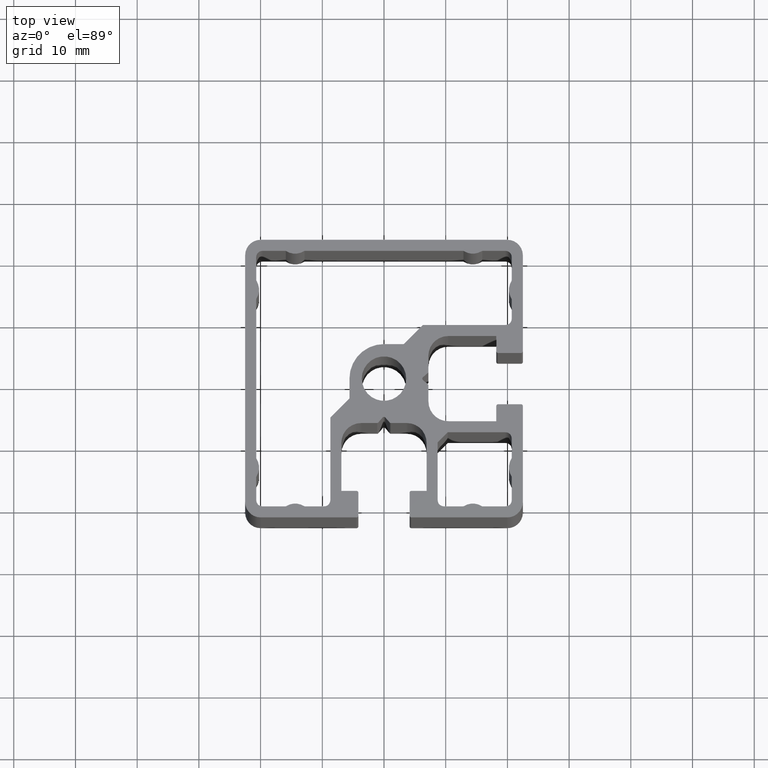
[diagram: clean part render]
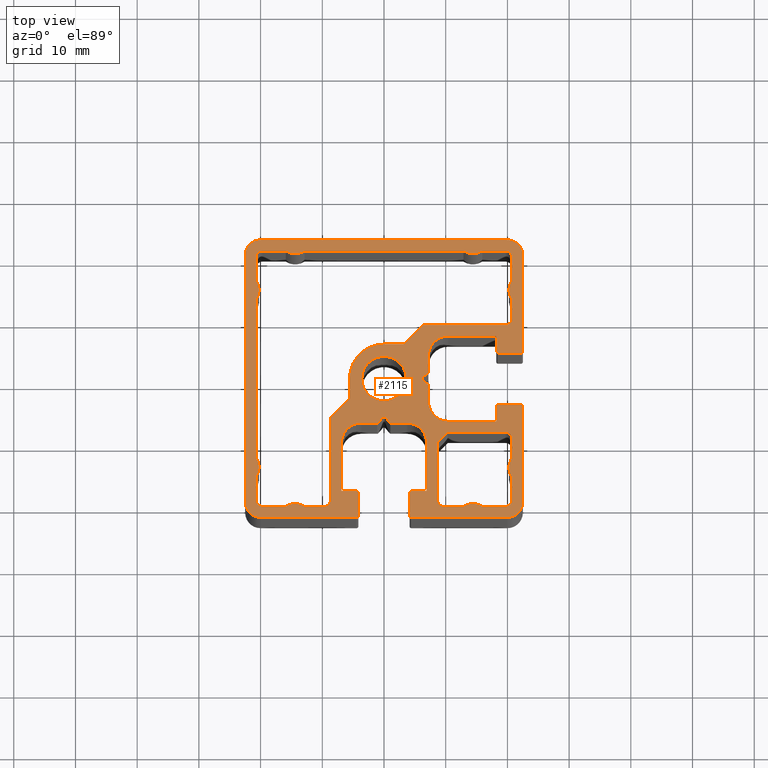
[diagram: same view with one face highlighted and labeled with its STEP entity id]
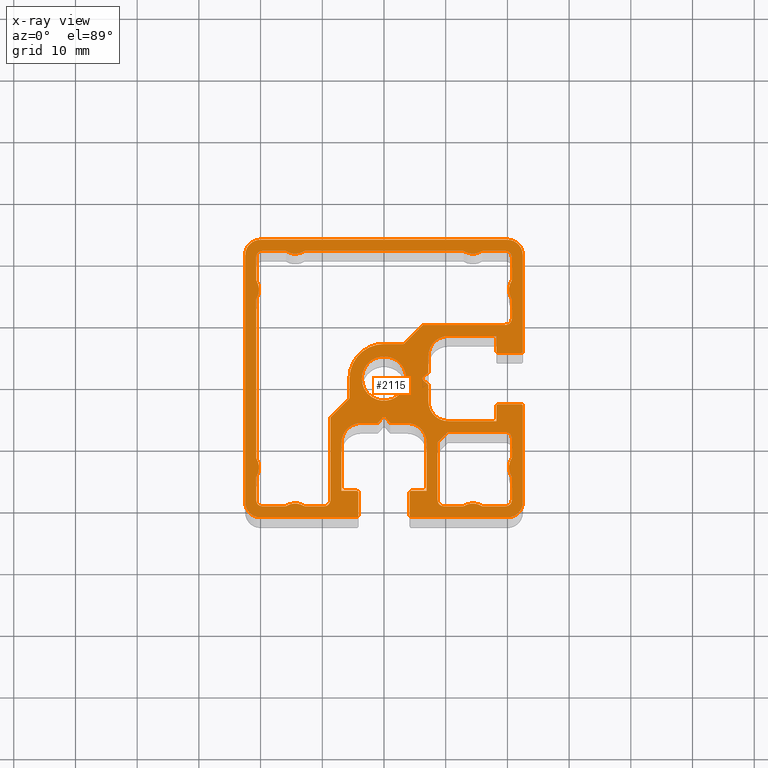
[diagram: x-ray of the same camera — body ghosted, the highlighted face saturated]
A machine part, top view. The second image highlights one B-rep face of the part: STEP entity #2115.
The next image is the same camera in x-ray: the body ghosted, the highlighted face saturated — about 0% of this face is hidden behind the body in this view.
In plain terms, the highlighted planar face has unit normal (0, 0, 1).
Its self-contained STEP definition (entity closure, byte-faithful):
#16=FACE_BOUND('',#396,.T.);
#17=FACE_BOUND('',#397,.T.);
#18=FACE_BOUND('',#398,.T.);
#22=CIRCLE('',#2129,0.999999999998);
#24=CIRCLE('',#2133,0.25);
#26=CIRCLE('',#2136,2.71999999998912);
#28=CIRCLE('',#2139,0.250000000000014);
#30=CIRCLE('',#2143,0.999999999996);
#32=CIRCLE('',#2147,0.250000000000007);
#34=CIRCLE('',#2150,2.7199999999891);
#36=CIRCLE('',#2153,0.249999999999989);
#38=CIRCLE('',#2157,0.999999999997998);
#40=CIRCLE('',#2162,0.250000000000018);
#42=CIRCLE('',#2166,0.999999999998003);
#44=CIRCLE('',#2172,5.6);
#46=CIRCLE('',#2178,0.999999999998003);
#48=CIRCLE('',#2182,0.249999999999979);
#50=CIRCLE('',#2185,2.71999999998913);
#52=CIRCLE('',#2188,0.249999999999993);
#54=CIRCLE('',#2192,0.999999999996);
#56=CIRCLE('',#2196,0.249999999999986);
#58=CIRCLE('',#2199,2.71999999998911);
#60=CIRCLE('',#2202,0.250000000000014);
#62=CIRCLE('',#2206,0.249999999999989);
#64=CIRCLE('',#2209,2.71999999998912);
#66=CIRCLE('',#2212,0.24999999999999);
#68=CIRCLE('',#2216,0.999999999996);
#70=CIRCLE('',#2220,0.250000000000004);
#72=CIRCLE('',#2223,2.71999999998913);
#74=CIRCLE('',#2226,0.249999999999986);
#76=CIRCLE('',#2230,0.250000000000004);
#78=CIRCLE('',#2233,2.71999999998912);
#80=CIRCLE('',#2236,0.25);
#82=CIRCLE('',#2240,0.999999999996);
#84=CIRCLE('',#2244,0.250000000000018);
#86=CIRCLE('',#2247,2.71999999998912);
#88=CIRCLE('',#2250,3.6);
#90=CIRCLE('',#2254,0.299999999999997);
#92=CIRCLE('',#2258,3.1999999999936);
#94=CIRCLE('',#2263,0.2999999999994);
#96=CIRCLE('',#2267,0.299999999999407);
#98=CIRCLE('',#2270,0.2999999999994);
#100=CIRCLE('',#2274,0.2999999999994);
#102=CIRCLE('',#2279,3.19999999999359);
#104=CIRCLE('',#2283,0.300000000000004);
#106=CIRCLE('',#2287,0.300000000000003);
#108=CIRCLE('',#2290,0.300000000000003);
#110=CIRCLE('',#2294,0.300000000000004);
#112=CIRCLE('',#2298,3.19999999999359);
#114=CIRCLE('',#2303,0.2999999999994);
#116=CIRCLE('',#2307,0.2999999999994);
#118=CIRCLE('',#2310,0.299999999999407);
#120=CIRCLE('',#2314,0.2999999999994);
#122=CIRCLE('',#2319,3.1999999999936);
#124=CIRCLE('',#2323,0.299999999999997);
#126=CIRCLE('',#2329,2.5);
#127=CIRCLE('',#2330,2.5);
#128=CIRCLE('',#2331,2.5);
#129=CIRCLE('',#2332,2.5);
#287=FACE_OUTER_BOUND('',#395,.T.);
#395=EDGE_LOOP('',(#1725,#1726,#1727,#1728,#1729,#1730,#1731,#1732,#1733,
#1734,#1735,#1736,#1737,#1738,#1739,#1740,#1741,#1742,#1743,#1744,#1745,
#1746,#1747,#1748,#1749,#1750,#1751,#1752,#1753,#1754,#1755,#1756,#1757,
#1758,#1759,#1760,#1761,#1762,#1763,#1764,#1765,#1766,#1767,#1768,#1769,
#1770,#1771,#1772));
#396=EDGE_LOOP('',(#1773));
#397=EDGE_LOOP('',(#1774,#1775,#1776,#1777,#1778,#1779,#1780,#1781,#1782,
#1783,#1784,#1785,#1786,#1787,#1788,#1789,#1790,#1791,#1792,#1793,#1794,
#1795,#1796,#1797,#1798,#1799,#1800,#1801,#1802,#1803,#1804,#1805,#1806,
#1807,#1808,#1809,#1810,#1811,#1812,#1813));
#398=EDGE_LOOP('',(#1814,#1815,#1816,#1817,#1818,#1819,#1820,#1821,#1822,
#1823,#1824,#1825,#1826,#1827,#1828,#1829));
#411=LINE('',#2992,#613);
#416=LINE('',#3006,#618);
#422=LINE('',#3030,#624);
#426=LINE('',#3042,#628);
#432=LINE('',#3066,#634);
#436=LINE('',#3078,#638);
#439=LINE('',#3083,#641);
#443=LINE('',#3096,#645);
#447=LINE('',#3108,#649);
#450=LINE('',#3114,#652);
#453=LINE('',#3120,#655);
#457=LINE('',#3132,#659);
#460=LINE('',#3138,#662);
#463=LINE('',#3144,#665);
#467=LINE('',#3156,#669);
#473=LINE('',#3180,#675);
#477=LINE('',#3192,#679);
#483=LINE('',#3216,#685);
#489=LINE('',#3240,#691);
#493=LINE('',#3252,#695);
#499=LINE('',#3276,#701);
#505=LINE('',#3300,#707);
#509=LINE('',#3312,#711);
#513=LINE('',#3333,#715);
#518=LINE('',#3347,#720);
#522=LINE('',#3359,#724);
#525=LINE('',#3365,#727);
#529=LINE('',#3377,#731);
#535=LINE('',#3398,#737);
#539=LINE('',#3410,#741);
#542=LINE('',#3416,#744);
#546=LINE('',#3428,#748);
#550=LINE('',#3440,#752);
#555=LINE('',#3458,#757);
#559=LINE('',#3470,#761);
#563=LINE('',#3482,#765);
#566=LINE('',#3488,#768);
#570=LINE('',#3500,#772);
#576=LINE('',#3521,#778);
#580=LINE('',#3533,#782);
#583=LINE('',#3539,#785);
#587=LINE('',#3551,#789);
#591=LINE('',#3562,#793);
#595=LINE('',#3569,#797);
#596=LINE('',#3572,#798);
#599=LINE('',#3579,#801);
#600=LINE('',#3583,#802);
#601=LINE('',#3587,#803);
#602=LINE('',#3590,#804);
#613=VECTOR('',#2350,9.37365400000362);
#618=VECTOR('',#2363,3.12821757232699);
#624=VECTOR('',#2389,3.7282175723307);
#628=VECTOR('',#2401,3.7282175723338);
#634=VECTOR('',#2427,3.12821757233066);
#638=VECTOR('',#2439,9.37365400000133);
#641=VECTOR('',#2444,2.30000057030746);
#645=VECTOR('',#2456,3.1282175723185);
#649=VECTOR('',#2468,13.3999999999912);
#652=VECTOR('',#2473,4.38406204337121);
#655=VECTOR('',#2478,3.2);
#659=VECTOR('',#2490,3.2);
#662=VECTOR('',#2495,4.38406204337119);
#665=VECTOR('',#2500,13.3999999999897);
#669=VECTOR('',#2512,3.12821757233066);
#675=VECTOR('',#2538,3.72821757233365);
#679=VECTOR('',#2550,3.72821757233071);
#685=VECTOR('',#2576,25.6564351446578);
#691=VECTOR('',#2602,3.72821757233071);
#695=VECTOR('',#2614,3.72821757233365);
#701=VECTOR('',#2640,25.6564351446596);
#707=VECTOR('',#2666,3.72821757232995);
#711=VECTOR('',#2678,3.72821757233143);
#715=VECTOR('',#2702,1.0422851300662);
#720=VECTOR('',#2715,2.56331167858849);
#724=VECTOR('',#2727,7.8);
#727=VECTOR('',#2732,2.45);
#731=VECTOR('',#2744,3.7);
#737=VECTOR('',#2764,3.7);
#741=VECTOR('',#2776,2.45);
#744=VECTOR('',#2781,7.80000000000002);
#748=VECTOR('',#2793,2.5633116785888);
#752=VECTOR('',#2805,1.04228513006779);
#757=VECTOR('',#2824,1.04228513006779);
#761=VECTOR('',#2836,2.5633116785888);
#765=VECTOR('',#2848,7.80000000000001);
#768=VECTOR('',#2853,2.45);
#772=VECTOR('',#2865,3.7);
#778=VECTOR('',#2885,3.7);
#782=VECTOR('',#2897,2.45);
#785=VECTOR('',#2902,7.8);
#789=VECTOR('',#2914,2.56331167858849);
#793=VECTOR('',#2926,1.0422851300662);
#797=VECTOR('',#2932,15.5500000000006);
#798=VECTOR('',#2935,15.55);
#801=VECTOR('',#2942,15.5500000000006);
#802=VECTOR('',#2945,40.);
#803=VECTOR('',#2948,40.);
#804=VECTOR('',#2951,15.55);
#815=VERTEX_POINT('',#2990);
#816=VERTEX_POINT('',#2991);
#819=VERTEX_POINT('',#2999);
#821=VERTEX_POINT('',#3005);
#823=VERTEX_POINT('',#3011);
#825=VERTEX_POINT('',#3017);
#827=VERTEX_POINT('',#3023);
#829=VERTEX_POINT('',#3029);
#831=VERTEX_POINT('',#3035);
#833=VERTEX_POINT('',#3041);
#835=VERTEX_POINT('',#3047);
#837=VERTEX_POINT('',#3053);
#839=VERTEX_POINT('',#3059);
#841=VERTEX_POINT('',#3065);
#843=VERTEX_POINT('',#3071);
#845=VERTEX_POINT('',#3077);
#847=VERTEX_POINT('',#3086);
#848=VERTEX_POINT('',#3087);
#851=VERTEX_POINT('',#3095);
#853=VERTEX_POINT('',#3101);
#855=VERTEX_POINT('',#3107);
#857=VERTEX_POINT('',#3113);
#859=VERTEX_POINT('',#3119);
#861=VERTEX_POINT('',#3125);
#863=VERTEX_POINT('',#3131);
#865=VERTEX_POINT('',#3137);
#867=VERTEX_POINT('',#3143);
#869=VERTEX_POINT('',#3149);
#871=VERTEX_POINT('',#3155);
#873=VERTEX_POINT('',#3161);
#875=VERTEX_POINT('',#3167);
#877=VERTEX_POINT('',#3173);
#879=VERTEX_POINT('',#3179);
#881=VERTEX_POINT('',#3185);
#883=VERTEX_POINT('',#3191);
#885=VERTEX_POINT('',#3197);
#887=VERTEX_POINT('',#3203);
#889=VERTEX_POINT('',#3209);
#891=VERTEX_POINT('',#3215);
#893=VERTEX_POINT('',#3221);
#895=VERTEX_POINT('',#3227);
#897=VERTEX_POINT('',#3233);
#899=VERTEX_POINT('',#3239);
#901=VERTEX_POINT('',#3245);
#903=VERTEX_POINT('',#3251);
#905=VERTEX_POINT('',#3257);
#907=VERTEX_POINT('',#3263);
#909=VERTEX_POINT('',#3269);
#911=VERTEX_POINT('',#3275);
#913=VERTEX_POINT('',#3281);
#915=VERTEX_POINT('',#3287);
#917=VERTEX_POINT('',#3293);
#919=VERTEX_POINT('',#3299);
#921=VERTEX_POINT('',#3305);
#923=VERTEX_POINT('',#3311);
#925=VERTEX_POINT('',#3317);
#927=VERTEX_POINT('',#3326);
#929=VERTEX_POINT('',#3331);
#930=VERTEX_POINT('',#3332);
#933=VERTEX_POINT('',#3340);
#935=VERTEX_POINT('',#3346);
#937=VERTEX_POINT('',#3352);
#939=VERTEX_POINT('',#3358);
#941=VERTEX_POINT('',#3364);
#943=VERTEX_POINT('',#3370);
#945=VERTEX_POINT('',#3376);
#947=VERTEX_POINT('',#3382);
#949=VERTEX_POINT('',#3388);
#950=VERTEX_POINT('',#3389);
#953=VERTEX_POINT('',#3397);
#955=VERTEX_POINT('',#3403);
#957=VERTEX_POINT('',#3409);
#959=VERTEX_POINT('',#3415);
#961=VERTEX_POINT('',#3421);
#963=VERTEX_POINT('',#3427);
#965=VERTEX_POINT('',#3433);
#967=VERTEX_POINT('',#3439);
#969=VERTEX_POINT('',#3448);
#970=VERTEX_POINT('',#3449);
#973=VERTEX_POINT('',#3457);
#975=VERTEX_POINT('',#3463);
#977=VERTEX_POINT('',#3469);
#979=VERTEX_POINT('',#3475);
#981=VERTEX_POINT('',#3481);
#983=VERTEX_POINT('',#3487);
#985=VERTEX_POINT('',#3493);
#987=VERTEX_POINT('',#3499);
#989=VERTEX_POINT('',#3505);
#991=VERTEX_POINT('',#3511);
#992=VERTEX_POINT('',#3512);
#995=VERTEX_POINT('',#3520);
#997=VERTEX_POINT('',#3526);
#999=VERTEX_POINT('',#3532);
#1001=VERTEX_POINT('',#3538);
#1003=VERTEX_POINT('',#3544);
#1005=VERTEX_POINT('',#3550);
#1007=VERTEX_POINT('',#3556);
#1010=VERTEX_POINT('',#3567);
#1011=VERTEX_POINT('',#3571);
#1013=VERTEX_POINT('',#3578);
#1014=VERTEX_POINT('',#3580);
#1015=VERTEX_POINT('',#3582);
#1016=VERTEX_POINT('',#3584);
#1017=VERTEX_POINT('',#3586);
#1018=VERTEX_POINT('',#3588);
#1025=EDGE_CURVE('',#815,#816,#411,.T.);
#1029=EDGE_CURVE('',#816,#819,#22,.T.);
#1032=EDGE_CURVE('',#819,#821,#416,.T.);
#1035=EDGE_CURVE('',#821,#823,#24,.T.);
#1038=EDGE_CURVE('',#823,#825,#26,.T.);
#1041=EDGE_CURVE('',#825,#827,#28,.T.);
#1044=EDGE_CURVE('',#827,#829,#422,.T.);
#1047=EDGE_CURVE('',#829,#831,#30,.T.);
#1050=EDGE_CURVE('',#831,#833,#426,.T.);
#1053=EDGE_CURVE('',#833,#835,#32,.T.);
#1056=EDGE_CURVE('',#835,#837,#34,.T.);
#1059=EDGE_CURVE('',#837,#839,#36,.T.);
#1062=EDGE_CURVE('',#839,#841,#432,.T.);
#1065=EDGE_CURVE('',#841,#843,#38,.T.);
#1068=EDGE_CURVE('',#843,#845,#436,.T.);
#1071=EDGE_CURVE('',#845,#815,#439,.T.);
#1073=EDGE_CURVE('',#847,#848,#40,.T.);
#1077=EDGE_CURVE('',#848,#851,#443,.T.);
#1080=EDGE_CURVE('',#851,#853,#42,.T.);
#1083=EDGE_CURVE('',#853,#855,#447,.T.);
#1086=EDGE_CURVE('',#855,#857,#450,.T.);
#1089=EDGE_CURVE('',#857,#859,#453,.T.);
#1092=EDGE_CURVE('',#859,#861,#44,.T.);
#1095=EDGE_CURVE('',#861,#863,#457,.T.);
#1098=EDGE_CURVE('',#863,#865,#460,.T.);
#1101=EDGE_CURVE('',#865,#867,#463,.T.);
#1104=EDGE_CURVE('',#867,#869,#46,.T.);
#1107=EDGE_CURVE('',#869,#871,#467,.T.);
#1110=EDGE_CURVE('',#871,#873,#48,.T.);
#1113=EDGE_CURVE('',#873,#875,#50,.T.);
#1116=EDGE_CURVE('',#875,#877,#52,.T.);
#1119=EDGE_CURVE('',#877,#879,#473,.T.);
#1122=EDGE_CURVE('',#879,#881,#54,.T.);
#1125=EDGE_CURVE('',#881,#883,#477,.T.);
#1128=EDGE_CURVE('',#883,#885,#56,.T.);
#1131=EDGE_CURVE('',#885,#887,#58,.T.);
#1134=EDGE_CURVE('',#887,#889,#60,.T.);
#1137=EDGE_CURVE('',#889,#891,#483,.T.);
#1140=EDGE_CURVE('',#891,#893,#62,.T.);
#1143=EDGE_CURVE('',#893,#895,#64,.T.);
#1146=EDGE_CURVE('',#895,#897,#66,.T.);
#1149=EDGE_CURVE('',#897,#899,#489,.T.);
#1152=EDGE_CURVE('',#899,#901,#68,.T.);
#1155=EDGE_CURVE('',#901,#903,#493,.T.);
#1158=EDGE_CURVE('',#903,#905,#70,.T.);
#1161=EDGE_CURVE('',#905,#907,#72,.T.);
#1164=EDGE_CURVE('',#907,#909,#74,.T.);
#1167=EDGE_CURVE('',#909,#911,#499,.T.);
#1170=EDGE_CURVE('',#911,#913,#76,.T.);
#1173=EDGE_CURVE('',#913,#915,#78,.T.);
#1176=EDGE_CURVE('',#915,#917,#80,.T.);
#1179=EDGE_CURVE('',#917,#919,#505,.T.);
#1182=EDGE_CURVE('',#919,#921,#82,.T.);
#1185=EDGE_CURVE('',#921,#923,#509,.T.);
#1188=EDGE_CURVE('',#923,#925,#84,.T.);
#1191=EDGE_CURVE('',#925,#847,#86,.T.);
#1193=EDGE_CURVE('',#927,#927,#88,.T.);
#1195=EDGE_CURVE('',#929,#930,#513,.T.);
#1199=EDGE_CURVE('',#930,#933,#90,.T.);
#1202=EDGE_CURVE('',#933,#935,#518,.T.);
#1205=EDGE_CURVE('',#935,#937,#92,.T.);
#1208=EDGE_CURVE('',#937,#939,#522,.T.);
#1211=EDGE_CURVE('',#939,#941,#525,.T.);
#1214=EDGE_CURVE('',#941,#943,#94,.T.);
#1217=EDGE_CURVE('',#943,#945,#529,.T.);
#1220=EDGE_CURVE('',#945,#947,#96,.T.);
#1223=EDGE_CURVE('',#949,#950,#98,.T.);
#1227=EDGE_CURVE('',#950,#953,#535,.T.);
#1230=EDGE_CURVE('',#953,#955,#100,.T.);
#1233=EDGE_CURVE('',#955,#957,#539,.T.);
#1236=EDGE_CURVE('',#957,#959,#542,.T.);
#1239=EDGE_CURVE('',#959,#961,#102,.T.);
#1242=EDGE_CURVE('',#961,#963,#546,.T.);
#1245=EDGE_CURVE('',#963,#965,#104,.T.);
#1248=EDGE_CURVE('',#965,#967,#550,.T.);
#1251=EDGE_CURVE('',#967,#929,#106,.T.);
#1253=EDGE_CURVE('',#969,#970,#108,.T.);
#1257=EDGE_CURVE('',#973,#969,#555,.T.);
#1260=EDGE_CURVE('',#975,#973,#110,.T.);
#1263=EDGE_CURVE('',#977,#975,#559,.T.);
#1266=EDGE_CURVE('',#979,#977,#112,.T.);
#1269=EDGE_CURVE('',#981,#979,#563,.T.);
#1272=EDGE_CURVE('',#983,#981,#566,.T.);
#1275=EDGE_CURVE('',#985,#983,#114,.T.);
#1278=EDGE_CURVE('',#987,#985,#570,.T.);
#1281=EDGE_CURVE('',#989,#987,#116,.T.);
#1284=EDGE_CURVE('',#991,#992,#118,.T.);
#1288=EDGE_CURVE('',#995,#991,#576,.T.);
#1291=EDGE_CURVE('',#997,#995,#120,.T.);
#1294=EDGE_CURVE('',#999,#997,#580,.T.);
#1297=EDGE_CURVE('',#1001,#999,#583,.T.);
#1300=EDGE_CURVE('',#1003,#1001,#122,.T.);
#1303=EDGE_CURVE('',#1005,#1003,#587,.T.);
#1306=EDGE_CURVE('',#1007,#1005,#124,.T.);
#1309=EDGE_CURVE('',#970,#1007,#591,.T.);
#1313=EDGE_CURVE('',#1010,#947,#595,.T.);
#1314=EDGE_CURVE('',#989,#1011,#596,.T.);
#1317=EDGE_CURVE('',#1011,#1010,#126,.T.);
#1318=EDGE_CURVE('',#1013,#992,#599,.T.);
#1319=EDGE_CURVE('',#1014,#1013,#127,.T.);
#1320=EDGE_CURVE('',#1015,#1014,#600,.T.);
#1321=EDGE_CURVE('',#1016,#1015,#128,.T.);
#1322=EDGE_CURVE('',#1017,#1016,#601,.T.);
#1323=EDGE_CURVE('',#1018,#1017,#129,.T.);
#1324=EDGE_CURVE('',#949,#1018,#602,.T.);
#1725=ORIENTED_EDGE('',*,*,#1223,.T.);
#1726=ORIENTED_EDGE('',*,*,#1227,.T.);
#1727=ORIENTED_EDGE('',*,*,#1230,.T.);
#1728=ORIENTED_EDGE('',*,*,#1233,.T.);
#1729=ORIENTED_EDGE('',*,*,#1236,.T.);
#1730=ORIENTED_EDGE('',*,*,#1239,.T.);
#1731=ORIENTED_EDGE('',*,*,#1242,.T.);
#1732=ORIENTED_EDGE('',*,*,#1245,.T.);
#1733=ORIENTED_EDGE('',*,*,#1248,.T.);
#1734=ORIENTED_EDGE('',*,*,#1251,.T.);
#1735=ORIENTED_EDGE('',*,*,#1195,.T.);
#1736=ORIENTED_EDGE('',*,*,#1199,.T.);
#1737=ORIENTED_EDGE('',*,*,#1202,.T.);
#1738=ORIENTED_EDGE('',*,*,#1205,.T.);
#1739=ORIENTED_EDGE('',*,*,#1208,.T.);
#1740=ORIENTED_EDGE('',*,*,#1211,.T.);
#1741=ORIENTED_EDGE('',*,*,#1214,.T.);
#1742=ORIENTED_EDGE('',*,*,#1217,.T.);
#1743=ORIENTED_EDGE('',*,*,#1220,.T.);
#1744=ORIENTED_EDGE('',*,*,#1313,.F.);
#1745=ORIENTED_EDGE('',*,*,#1317,.F.);
#1746=ORIENTED_EDGE('',*,*,#1314,.F.);
#1747=ORIENTED_EDGE('',*,*,#1281,.T.);
#1748=ORIENTED_EDGE('',*,*,#1278,.T.);
#1749=ORIENTED_EDGE('',*,*,#1275,.T.);
#1750=ORIENTED_EDGE('',*,*,#1272,.T.);
#1751=ORIENTED_EDGE('',*,*,#1269,.T.);
#1752=ORIENTED_EDGE('',*,*,#1266,.T.);
#1753=ORIENTED_EDGE('',*,*,#1263,.T.);
#1754=ORIENTED_EDGE('',*,*,#1260,.T.);
#1755=ORIENTED_EDGE('',*,*,#1257,.T.);
#1756=ORIENTED_EDGE('',*,*,#1253,.T.);
#1757=ORIENTED_EDGE('',*,*,#1309,.T.);
#1758=ORIENTED_EDGE('',*,*,#1306,.T.);
#1759=ORIENTED_EDGE('',*,*,#1303,.T.);
#1760=ORIENTED_EDGE('',*,*,#1300,.T.);
#1761=ORIENTED_EDGE('',*,*,#1297,.T.);
#1762=ORIENTED_EDGE('',*,*,#1294,.T.);
#1763=ORIENTED_EDGE('',*,*,#1291,.T.);
#1764=ORIENTED_EDGE('',*,*,#1288,.T.);
#1765=ORIENTED_EDGE('',*,*,#1284,.T.);
#1766=ORIENTED_EDGE('',*,*,#1318,.F.);
#1767=ORIENTED_EDGE('',*,*,#1319,.F.);
#1768=ORIENTED_EDGE('',*,*,#1320,.F.);
#1769=ORIENTED_EDGE('',*,*,#1321,.F.);
#1770=ORIENTED_EDGE('',*,*,#1322,.F.);
#1771=ORIENTED_EDGE('',*,*,#1323,.F.);
#1772=ORIENTED_EDGE('',*,*,#1324,.F.);
#1773=ORIENTED_EDGE('',*,*,#1193,.T.);
#1774=ORIENTED_EDGE('',*,*,#1073,.T.);
#1775=ORIENTED_EDGE('',*,*,#1077,.T.);
#1776=ORIENTED_EDGE('',*,*,#1080,.T.);
#1777=ORIENTED_EDGE('',*,*,#1083,.T.);
#1778=ORIENTED_EDGE('',*,*,#1086,.T.);
#1779=ORIENTED_EDGE('',*,*,#1089,.T.);
#1780=ORIENTED_EDGE('',*,*,#1092,.T.);
#1781=ORIENTED_EDGE('',*,*,#1095,.T.);
#1782=ORIENTED_EDGE('',*,*,#1098,.T.);
#1783=ORIENTED_EDGE('',*,*,#1101,.T.);
#1784=ORIENTED_EDGE('',*,*,#1104,.T.);
#1785=ORIENTED_EDGE('',*,*,#1107,.T.);
#1786=ORIENTED_EDGE('',*,*,#1110,.T.);
#1787=ORIENTED_EDGE('',*,*,#1113,.T.);
#1788=ORIENTED_EDGE('',*,*,#1116,.T.);
#1789=ORIENTED_EDGE('',*,*,#1119,.T.);
#1790=ORIENTED_EDGE('',*,*,#1122,.T.);
#1791=ORIENTED_EDGE('',*,*,#1125,.T.);
#1792=ORIENTED_EDGE('',*,*,#1128,.T.);
#1793=ORIENTED_EDGE('',*,*,#1131,.T.);
#1794=ORIENTED_EDGE('',*,*,#1134,.T.);
#1795=ORIENTED_EDGE('',*,*,#1137,.T.);
#1796=ORIENTED_EDGE('',*,*,#1140,.T.);
#1797=ORIENTED_EDGE('',*,*,#1143,.T.);
#1798=ORIENTED_EDGE('',*,*,#1146,.T.);
#1799=ORIENTED_EDGE('',*,*,#1149,.T.);
#1800=ORIENTED_EDGE('',*,*,#1152,.T.);
#1801=ORIENTED_EDGE('',*,*,#1155,.T.);
#1802=ORIENTED_EDGE('',*,*,#1158,.T.);
#1803=ORIENTED_EDGE('',*,*,#1161,.T.);
#1804=ORIENTED_EDGE('',*,*,#1164,.T.);
#1805=ORIENTED_EDGE('',*,*,#1167,.T.);
#1806=ORIENTED_EDGE('',*,*,#1170,.T.);
#1807=ORIENTED_EDGE('',*,*,#1173,.T.);
#1808=ORIENTED_EDGE('',*,*,#1176,.T.);
#1809=ORIENTED_EDGE('',*,*,#1179,.T.);
#1810=ORIENTED_EDGE('',*,*,#1182,.T.);
#1811=ORIENTED_EDGE('',*,*,#1185,.T.);
#1812=ORIENTED_EDGE('',*,*,#1188,.T.);
#1813=ORIENTED_EDGE('',*,*,#1191,.T.);
#1814=ORIENTED_EDGE('',*,*,#1025,.T.);
#1815=ORIENTED_EDGE('',*,*,#1029,.T.);
#1816=ORIENTED_EDGE('',*,*,#1032,.T.);
#1817=ORIENTED_EDGE('',*,*,#1035,.T.);
#1818=ORIENTED_EDGE('',*,*,#1038,.T.);
#1819=ORIENTED_EDGE('',*,*,#1041,.T.);
#1820=ORIENTED_EDGE('',*,*,#1044,.T.);
#1821=ORIENTED_EDGE('',*,*,#1047,.T.);
#1822=ORIENTED_EDGE('',*,*,#1050,.T.);
#1823=ORIENTED_EDGE('',*,*,#1053,.T.);
#1824=ORIENTED_EDGE('',*,*,#1056,.T.);
#1825=ORIENTED_EDGE('',*,*,#1059,.T.);
#1826=ORIENTED_EDGE('',*,*,#1062,.T.);
#1827=ORIENTED_EDGE('',*,*,#1065,.T.);
#1828=ORIENTED_EDGE('',*,*,#1068,.T.);
#1829=ORIENTED_EDGE('',*,*,#1071,.T.);
#2012=PLANE('',#2328);
#2115=ADVANCED_FACE('',(#287,#16,#17,#18),#2012,.T.);
#2129=AXIS2_PLACEMENT_3D('',#3000,#2356,#2357);
#2133=AXIS2_PLACEMENT_3D('',#3012,#2368,#2369);
#2136=AXIS2_PLACEMENT_3D('',#3018,#2375,#2376);
#2139=AXIS2_PLACEMENT_3D('',#3024,#2382,#2383);
#2143=AXIS2_PLACEMENT_3D('',#3036,#2394,#2395);
#2147=AXIS2_PLACEMENT_3D('',#3048,#2406,#2407);
#2150=AXIS2_PLACEMENT_3D('',#3054,#2413,#2414);
#2153=AXIS2_PLACEMENT_3D('',#3060,#2420,#2421);
#2157=AXIS2_PLACEMENT_3D('',#3072,#2432,#2433);
#2162=AXIS2_PLACEMENT_3D('',#3088,#2448,#2449);
#2166=AXIS2_PLACEMENT_3D('',#3102,#2461,#2462);
#2172=AXIS2_PLACEMENT_3D('',#3126,#2483,#2484);
#2178=AXIS2_PLACEMENT_3D('',#3150,#2505,#2506);
#2182=AXIS2_PLACEMENT_3D('',#3162,#2517,#2518);
#2185=AXIS2_PLACEMENT_3D('',#3168,#2524,#2525);
#2188=AXIS2_PLACEMENT_3D('',#3174,#2531,#2532);
#2192=AXIS2_PLACEMENT_3D('',#3186,#2543,#2544);
#2196=AXIS2_PLACEMENT_3D('',#3198,#2555,#2556);
#2199=AXIS2_PLACEMENT_3D('',#3204,#2562,#2563);
#2202=AXIS2_PLACEMENT_3D('',#3210,#2569,#2570);
#2206=AXIS2_PLACEMENT_3D('',#3222,#2581,#2582);
#2209=AXIS2_PLACEMENT_3D('',#3228,#2588,#2589);
#2212=AXIS2_PLACEMENT_3D('',#3234,#2595,#2596);
#2216=AXIS2_PLACEMENT_3D('',#3246,#2607,#2608);
#2220=AXIS2_PLACEMENT_3D('',#3258,#2619,#2620);
#2223=AXIS2_PLACEMENT_3D('',#3264,#2626,#2627);
#2226=AXIS2_PLACEMENT_3D('',#3270,#2633,#2634);
#2230=AXIS2_PLACEMENT_3D('',#3282,#2645,#2646);
#2233=AXIS2_PLACEMENT_3D('',#3288,#2652,#2653);
#2236=AXIS2_PLACEMENT_3D('',#3294,#2659,#2660);
#2240=AXIS2_PLACEMENT_3D('',#3306,#2671,#2672);
#2244=AXIS2_PLACEMENT_3D('',#3318,#2683,#2684);
#2247=AXIS2_PLACEMENT_3D('',#3323,#2690,#2691);
#2250=AXIS2_PLACEMENT_3D('',#3327,#2696,#2697);
#2254=AXIS2_PLACEMENT_3D('',#3341,#2708,#2709);
#2258=AXIS2_PLACEMENT_3D('',#3353,#2720,#2721);
#2263=AXIS2_PLACEMENT_3D('',#3371,#2737,#2738);
#2267=AXIS2_PLACEMENT_3D('',#3383,#2749,#2750);
#2270=AXIS2_PLACEMENT_3D('',#3390,#2756,#2757);
#2274=AXIS2_PLACEMENT_3D('',#3404,#2769,#2770);
#2279=AXIS2_PLACEMENT_3D('',#3422,#2786,#2787);
#2283=AXIS2_PLACEMENT_3D('',#3434,#2798,#2799);
#2287=AXIS2_PLACEMENT_3D('',#3445,#2810,#2811);
#2290=AXIS2_PLACEMENT_3D('',#3450,#2816,#2817);
#2294=AXIS2_PLACEMENT_3D('',#3464,#2829,#2830);
#2298=AXIS2_PLACEMENT_3D('',#3476,#2841,#2842);
#2303=AXIS2_PLACEMENT_3D('',#3494,#2858,#2859);
#2307=AXIS2_PLACEMENT_3D('',#3506,#2870,#2871);
#2310=AXIS2_PLACEMENT_3D('',#3513,#2877,#2878);
#2314=AXIS2_PLACEMENT_3D('',#3527,#2890,#2891);
#2319=AXIS2_PLACEMENT_3D('',#3545,#2907,#2908);
#2323=AXIS2_PLACEMENT_3D('',#3557,#2919,#2920);
#2328=AXIS2_PLACEMENT_3D('',#3576,#2938,#2939);
#2329=AXIS2_PLACEMENT_3D('',#3577,#2940,#2941);
#2330=AXIS2_PLACEMENT_3D('',#3581,#2943,#2944);
#2331=AXIS2_PLACEMENT_3D('',#3585,#2946,#2947);
#2332=AXIS2_PLACEMENT_3D('',#3589,#2949,#2950);
#2350=DIRECTION('',(1.,-2.84021024570578E-13,0.));
#2356=DIRECTION('center_axis',(0.,0.,-1.));
#2357=DIRECTION('ref_axis',(-1.,0.,0.));
#2363=DIRECTION('',(0.,-1.,0.));
#2368=DIRECTION('center_axis',(0.,0.,-1.));
#2369=DIRECTION('ref_axis',(-0.848484848487945,0.529219672618459,0.));
#2375=DIRECTION('center_axis',(0.,0.,1.));
#2376=DIRECTION('ref_axis',(-0.848484848487957,0.52921967261844,0.));
#2382=DIRECTION('center_axis',(0.,0.,-1.));
#2383=DIRECTION('ref_axis',(-1.,-2.7533531010702E-13,0.));
#2389=DIRECTION('',(2.68010303255448E-13,-1.,0.));
#2394=DIRECTION('center_axis',(0.,0.,-1.));
#2395=DIRECTION('ref_axis',(-1.07247544179219E-12,1.,0.));
#2401=DIRECTION('',(-1.,-9.85086759075873E-13,0.));
#2406=DIRECTION('center_axis',(0.,0.,-1.));
#2407=DIRECTION('ref_axis',(0.529219672618411,0.848484848487975,0.));
#2413=DIRECTION('center_axis',(0.,0.,1.));
#2414=DIRECTION('ref_axis',(0.529219672618442,0.848484848487955,0.));
#2420=DIRECTION('center_axis',(0.,0.,-1.));
#2421=DIRECTION('ref_axis',(-2.57571741713051E-13,1.,0.));
#2427=DIRECTION('',(-1.,-3.17995729856795E-13,0.));
#2432=DIRECTION('center_axis',(0.,0.,-1.));
#2433=DIRECTION('ref_axis',(1.,-2.00062189037854E-12,0.));
#2439=DIRECTION('',(-2.84257906159113E-13,1.,0.));
#2444=DIRECTION('',(0.707106781186546,0.707106781186548,0.));
#2448=DIRECTION('center_axis',(0.,0.,-1.));
#2449=DIRECTION('ref_axis',(-1.,-1.06581410364008E-13,0.));
#2456=DIRECTION('',(9.65344179926167E-14,-1.,0.));
#2461=DIRECTION('center_axis',(0.,0.,-1.));
#2462=DIRECTION('ref_axis',(-2.75335310107589E-13,1.,0.));
#2468=DIRECTION('',(-1.,-2.74738772362644E-13,0.));
#2473=DIRECTION('',(-0.707106781186548,-0.707106781186547,0.));
#2478=DIRECTION('',(-1.,0.,0.));
#2483=DIRECTION('center_axis',(0.,0.,1.));
#2484=DIRECTION('ref_axis',(1.11022302462516E-15,1.,0.));
#2490=DIRECTION('',(0.,-1.,0.));
#2495=DIRECTION('',(-0.707106781186548,-0.707106781186547,0.));
#2500=DIRECTION('',(-2.74904477291724E-13,-1.,0.));
#2505=DIRECTION('center_axis',(0.,0.,-1.));
#2506=DIRECTION('ref_axis',(-1.99729122130465E-12,1.,0.));
#2512=DIRECTION('',(-1.,3.19415353650799E-13,0.));
#2517=DIRECTION('center_axis',(0.,0.,-1.));
#2518=DIRECTION('ref_axis',(0.52921967261789,0.8484848484883,0.));
#2524=DIRECTION('center_axis',(0.,0.,1.));
#2525=DIRECTION('ref_axis',(0.529219672617903,0.848484848488292,0.));
#2531=DIRECTION('center_axis',(0.,0.,-1.));
#2532=DIRECTION('ref_axis',(1.07469588783717E-12,1.,0.));
#2538=DIRECTION('',(-1.,9.94616014302766E-13,0.));
#2543=DIRECTION('center_axis',(0.,0.,-1.));
#2544=DIRECTION('ref_axis',(1.,-2.4868995751703E-13,0.));
#2550=DIRECTION('',(2.50142949705084E-13,1.,0.));
#2555=DIRECTION('center_axis',(0.,0.,-1.));
#2556=DIRECTION('ref_axis',(0.848484848488318,-0.529219672617862,0.));
#2562=DIRECTION('center_axis',(0.,0.,1.));
#2563=DIRECTION('ref_axis',(0.848484848488291,-0.529219672617904,0.));
#2569=DIRECTION('center_axis',(0.,0.,-1.));
#2570=DIRECTION('ref_axis',(1.,-3.55271367880032E-14,0.));
#2576=DIRECTION('',(3.89973503392392E-13,1.,0.));
#2581=DIRECTION('center_axis',(0.,0.,-1.));
#2582=DIRECTION('ref_axis',(0.848484848487938,-0.52921967261847,0.));
#2588=DIRECTION('center_axis',(0.,0.,1.));
#2589=DIRECTION('ref_axis',(0.848484848487957,-0.529219672618441,0.));
#2595=DIRECTION('center_axis',(0.,0.,-1.));
#2596=DIRECTION('ref_axis',(1.,2.93098878501058E-13,0.));
#2602=DIRECTION('',(-2.46569478995012E-13,1.,0.));
#2607=DIRECTION('center_axis',(0.,0.,-1.));
#2608=DIRECTION('ref_axis',(9.94759830068122E-13,-1.,0.));
#2614=DIRECTION('',(1.,9.95807171206121E-13,0.));
#2619=DIRECTION('center_axis',(0.,0.,-1.));
#2620=DIRECTION('ref_axis',(-0.529219672618457,-0.848484848487946,0.));
#2626=DIRECTION('center_axis',(0.,0.,1.));
#2627=DIRECTION('ref_axis',(-0.529219672618433,-0.848484848487961,0.));
#2633=DIRECTION('center_axis',(0.,0.,-1.));
#2634=DIRECTION('ref_axis',(-2.66453525910053E-14,-1.,0.));
#2640=DIRECTION('',(1.,3.92916046471668E-14,0.));
#2645=DIRECTION('center_axis',(0.,0.,-1.));
#2646=DIRECTION('ref_axis',(-0.529219672618457,-0.848484848487946,0.));
#2652=DIRECTION('center_axis',(0.,0.,1.));
#2653=DIRECTION('ref_axis',(-0.529219672618439,-0.848484848487958,0.));
#2659=DIRECTION('center_axis',(0.,0.,-1.));
#2660=DIRECTION('ref_axis',(-1.02140518265515E-12,-1.,0.));
#2666=DIRECTION('',(1.,-9.9580717120711E-13,0.));
#2671=DIRECTION('center_axis',(0.,0.,-1.));
#2672=DIRECTION('ref_axis',(-1.,-7.4606987255109E-13,0.));
#2678=DIRECTION('',(7.48046535308394E-13,-1.,0.));
#2683=DIRECTION('center_axis',(0.,0.,-1.));
#2684=DIRECTION('ref_axis',(-0.848484848488265,0.529219672617946,0.));
#2690=DIRECTION('center_axis',(0.,0.,1.));
#2691=DIRECTION('ref_axis',(-0.848484848488295,0.529219672617897,0.));
#2696=DIRECTION('center_axis',(0.,0.,-1.));
#2697=DIRECTION('ref_axis',(-1.,0.,0.));
#2702=DIRECTION('',(0.65617812109012,-0.754606038541065,0.));
#2708=DIRECTION('center_axis',(0.,0.,1.));
#2709=DIRECTION('ref_axis',(0.754606038541051,0.656178121090137,0.));
#2715=DIRECTION('',(1.,-4.71235184110472E-13,0.));
#2720=DIRECTION('center_axis',(0.,0.,-1.));
#2721=DIRECTION('ref_axis',(1.,-2.00187089128124E-12,0.));
#2727=DIRECTION('',(1.64113736845232E-12,-1.,0.));
#2732=DIRECTION('',(-1.,0.,0.));
#2737=DIRECTION('center_axis',(0.,0.,1.));
#2738=DIRECTION('ref_axis',(1.98914958579071E-12,-1.,0.));
#2744=DIRECTION('',(-3.23615008664387E-13,-1.,0.));
#2749=DIRECTION('center_axis',(0.,0.,1.));
#2750=DIRECTION('ref_axis',(1.,2.96059473233961E-14,0.));
#2756=DIRECTION('center_axis',(0.,0.,1.));
#2757=DIRECTION('ref_axis',(-1.9891495857907E-12,1.,0.));
#2764=DIRECTION('',(3.22714827833609E-13,1.,0.));
#2769=DIRECTION('center_axis',(0.,0.,1.));
#2770=DIRECTION('ref_axis',(-1.,-1.99099995749842E-12,0.));
#2776=DIRECTION('',(-1.,4.87591826325172E-13,0.));
#2781=DIRECTION('',(0.,1.,0.));
#2786=DIRECTION('center_axis',(0.,0.,-1.));
#2787=DIRECTION('ref_axis',(2.00048311250046E-12,1.,0.));
#2793=DIRECTION('',(1.,4.99517957568512E-12,0.));
#2798=DIRECTION('center_axis',(0.,0.,1.));
#2799=DIRECTION('ref_axis',(-4.99322805325156E-12,1.,0.));
#2805=DIRECTION('',(0.656178121090121,0.754606038541064,0.));
#2810=DIRECTION('center_axis',(0.,0.,-1.));
#2811=DIRECTION('ref_axis',(0.754606038541058,0.656178121090128,0.));
#2816=DIRECTION('center_axis',(0.,0.,-1.));
#2817=DIRECTION('ref_axis',(-0.656178121090128,0.754606038541058,0.));
#2824=DIRECTION('',(-0.754606038541064,0.656178121090121,0.));
#2829=DIRECTION('center_axis',(0.,0.,1.));
#2830=DIRECTION('ref_axis',(-1.,-4.99276546032464E-12,0.));
#2836=DIRECTION('',(-4.99517957568512E-12,1.,0.));
#2841=DIRECTION('center_axis',(0.,0.,-1.));
#2842=DIRECTION('ref_axis',(-1.,2.00030964015286E-12,0.));
#2848=DIRECTION('',(-1.,1.42336285208353E-16,0.));
#2853=DIRECTION('',(-4.87591826325171E-13,-1.,0.));
#2858=DIRECTION('center_axis',(0.,0.,1.));
#2859=DIRECTION('ref_axis',(1.99099995749843E-12,-1.,0.));
#2865=DIRECTION('',(-1.,3.22864857972072E-13,0.));
#2870=DIRECTION('center_axis',(0.,0.,1.));
#2871=DIRECTION('ref_axis',(-1.,-1.9891495857907E-12,0.));
#2877=DIRECTION('center_axis',(0.,0.,1.));
#2878=DIRECTION('ref_axis',(-2.96059473233961E-14,1.,0.));
#2885=DIRECTION('',(1.,-3.23765038802849E-13,0.));
#2890=DIRECTION('center_axis',(0.,0.,1.));
#2891=DIRECTION('ref_axis',(1.,1.98914958579071E-12,0.));
#2897=DIRECTION('',(0.,-1.,0.));
#2902=DIRECTION('',(1.,1.64099503216711E-12,0.));
#2907=DIRECTION('center_axis',(0.,0.,-1.));
#2908=DIRECTION('ref_axis',(2.00187089128124E-12,1.,0.));
#2914=DIRECTION('',(4.71235184110472E-13,1.,0.));
#2919=DIRECTION('center_axis',(0.,0.,1.));
#2920=DIRECTION('ref_axis',(-0.656178121090137,0.754606038541051,0.));
#2926=DIRECTION('',(0.754606038541065,0.65617812109012,0.));
#2932=DIRECTION('',(-1.,0.,0.));
#2935=DIRECTION('',(1.11022302462516E-16,-1.,0.));
#2938=DIRECTION('center_axis',(0.,0.,1.));
#2939=DIRECTION('ref_axis',(1.,0.,0.));
#2940=DIRECTION('center_axis',(0.,0.,-1.));
#2941=DIRECTION('ref_axis',(-2.66453525910038E-15,-1.,0.));
#2942=DIRECTION('',(1.11022302462516E-16,-1.,0.));
#2943=DIRECTION('center_axis',(0.,0.,-1.));
#2944=DIRECTION('ref_axis',(1.,-3.55271367880051E-15,0.));
#2945=DIRECTION('',(1.,1.11022302462516E-16,0.));
#2946=DIRECTION('center_axis',(0.,0.,-1.));
#2947=DIRECTION('ref_axis',(-3.55271367880049E-15,1.,0.));
#2948=DIRECTION('',(2.22044604925031E-16,1.,0.));
#2949=DIRECTION('center_axis',(0.,0.,-1.));
#2950=DIRECTION('ref_axis',(-1.,0.,0.));
#2951=DIRECTION('',(-1.,0.,0.));
#2990=CARTESIAN_POINT('',(10.3263459999987,-8.70000000000134,100.));
#2991=CARTESIAN_POINT('',(19.7000000000023,-8.700000000004,100.));
#2992=CARTESIAN_POINT('',(9.8499999999999,-8.7000000000012,100.));
#2999=CARTESIAN_POINT('',(20.7,-9.700000000002,100.));
#3000=CARTESIAN_POINT('Origin',(19.700000000002,-9.700000000002,100.));
#3005=CARTESIAN_POINT('',(20.7,-12.828217572329,100.));
#3006=CARTESIAN_POINT('',(20.7,-6.41410878616449,100.));
#3011=CARTESIAN_POINT('',(20.662121212122,-12.9605224904836,100.));
#3012=CARTESIAN_POINT('Origin',(20.45,-12.828217572329,100.));
#3017=CARTESIAN_POINT('',(20.6621212121211,-15.8394775095149,100.));
#3018=CARTESIAN_POINT('Origin',(22.97,-14.4,100.));
#3023=CARTESIAN_POINT('',(20.699999999999,-15.9717824276693,100.));
#3024=CARTESIAN_POINT('Origin',(20.449999999999,-15.9717824276694,100.));
#3029=CARTESIAN_POINT('',(20.7,-19.7,100.));
#3030=CARTESIAN_POINT('',(20.6999999999974,-9.84999999999724,100.));
#3035=CARTESIAN_POINT('',(19.7000000000051,-20.6999999999963,100.));
#3036=CARTESIAN_POINT('Origin',(19.700000000004,-19.7000000000003,100.));
#3041=CARTESIAN_POINT('',(15.9717824276713,-20.7,100.));
#3042=CARTESIAN_POINT('',(7.98589121384583,-20.7000000000079,100.));
#3047=CARTESIAN_POINT('',(15.8394775095164,-20.662121212122,100.));
#3048=CARTESIAN_POINT('Origin',(15.971782427671,-20.45,100.));
#3053=CARTESIAN_POINT('',(12.9605224904851,-20.6621212121211,100.));
#3054=CARTESIAN_POINT('Origin',(14.4,-22.97,100.));
#3059=CARTESIAN_POINT('',(12.8282175723307,-20.699999999999,100.));
#3060=CARTESIAN_POINT('Origin',(12.8282175723306,-20.449999999999,100.));
#3065=CARTESIAN_POINT('',(9.7,-20.7,100.));
#3066=CARTESIAN_POINT('',(4.85000000000329,-20.7000000000015,100.));
#3071=CARTESIAN_POINT('',(8.700000000004,-19.7,100.));
#3072=CARTESIAN_POINT('Origin',(9.700000000002,-19.700000000002,100.));
#3077=CARTESIAN_POINT('',(8.70000000000134,-10.3263459999987,100.));
#3078=CARTESIAN_POINT('',(8.69999999999987,-5.1631729999981,100.));
#3083=CARTESIAN_POINT('',(9.91975949999934,-9.10658650000066,100.));
#3086=CARTESIAN_POINT('',(20.6621212121211,12.9605224904851,100.));
#3087=CARTESIAN_POINT('',(20.699999999999,12.8282175723306,100.));
#3088=CARTESIAN_POINT('Origin',(20.449999999999,12.8282175723306,100.));
#3095=CARTESIAN_POINT('',(20.6999999999993,9.70000000001212,100.));
#3096=CARTESIAN_POINT('',(20.6999999999998,4.85000000000706,100.));
#3101=CARTESIAN_POINT('',(19.7000000000016,8.70000000001402,100.));
#3102=CARTESIAN_POINT('Origin',(19.7000000000013,9.70000000001202,100.));
#3107=CARTESIAN_POINT('',(6.30000000001034,8.70000000001033,100.));
#3108=CARTESIAN_POINT('',(3.15000000000397,8.70000000000947,100.));
#3113=CARTESIAN_POINT('',(3.2,5.6,100.));
#3114=CARTESIAN_POINT('',(1.,3.4,100.));
#3119=CARTESIAN_POINT('',(4.44089209850063E-16,5.6,100.));
#3120=CARTESIAN_POINT('',(-1.94289029309402E-15,5.6,100.));
#3125=CARTESIAN_POINT('',(-5.6,6.9918689873934E-15,100.));
#3126=CARTESIAN_POINT('Origin',(-5.77315972805081E-15,1.33226762955019E-15,
100.));
#3131=CARTESIAN_POINT('',(-5.6,-3.19999999999999,100.));
#3132=CARTESIAN_POINT('',(-5.6,-1.6,100.));
#3137=CARTESIAN_POINT('',(-8.70000000001033,-6.30000000001031,100.));
#3138=CARTESIAN_POINT('',(-4.95000000000516,-2.55000000000515,100.));
#3143=CARTESIAN_POINT('',(-8.70000000001401,-19.7,100.));
#3144=CARTESIAN_POINT('',(-8.7000000000113,-9.8499999999988,100.));
#3149=CARTESIAN_POINT('',(-9.70000000001002,-20.7,100.));
#3150=CARTESIAN_POINT('Origin',(-9.70000000001201,-19.700000000002,100.));
#3155=CARTESIAN_POINT('',(-12.8282175723407,-20.699999999999,100.));
#3156=CARTESIAN_POINT('',(-6.41410878617365,-20.7000000000011,100.));
#3161=CARTESIAN_POINT('',(-12.9605224904951,-20.6621212121211,100.));
#3162=CARTESIAN_POINT('Origin',(-12.8282175723406,-20.449999999999,100.));
#3167=CARTESIAN_POINT('',(-15.8394775095264,-20.662121212122,100.));
#3168=CARTESIAN_POINT('Origin',(-14.40000000001,-22.97,100.));
#3173=CARTESIAN_POINT('',(-15.9717824276813,-20.7,100.));
#3174=CARTESIAN_POINT('Origin',(-15.971782427681,-20.45,100.));
#3179=CARTESIAN_POINT('',(-19.7000000000149,-20.6999999999963,100.));
#3180=CARTESIAN_POINT('',(-9.85000000001776,-20.7000000000061,100.));
#3185=CARTESIAN_POINT('',(-20.7000000000099,-19.7,100.));
#3186=CARTESIAN_POINT('Origin',(-19.7000000000139,-19.7000000000003,100.));
#3191=CARTESIAN_POINT('',(-20.700000000009,-15.9717824276693,100.));
#3192=CARTESIAN_POINT('',(-20.700000000007,-7.98589121383207,100.));
#3197=CARTESIAN_POINT('',(-20.6621212121311,-15.8394775095149,100.));
#3198=CARTESIAN_POINT('Origin',(-20.450000000009,-15.9717824276694,100.));
#3203=CARTESIAN_POINT('',(-20.662121212132,-12.9605224904836,100.));
#3204=CARTESIAN_POINT('Origin',(-22.97000000001,-14.4,100.));
#3209=CARTESIAN_POINT('',(-20.70000000001,-12.828217572329,100.));
#3210=CARTESIAN_POINT('Origin',(-20.45000000001,-12.828217572329,100.));
#3215=CARTESIAN_POINT('',(-20.7,12.8282175723289,100.));
#3216=CARTESIAN_POINT('',(-20.7000000000025,6.41410878616846,100.));
#3221=CARTESIAN_POINT('',(-20.662121212122,12.9605224904836,100.));
#3222=CARTESIAN_POINT('Origin',(-20.45,12.828217572329,100.));
#3227=CARTESIAN_POINT('',(-20.6621212121211,15.8394775095149,100.));
#3228=CARTESIAN_POINT('Origin',(-22.97,14.4,100.));
#3233=CARTESIAN_POINT('',(-20.699999999999,15.9717824276693,100.));
#3234=CARTESIAN_POINT('Origin',(-20.449999999999,15.9717824276694,100.));
#3239=CARTESIAN_POINT('',(-20.6999999999999,19.7,100.));
#3240=CARTESIAN_POINT('',(-20.6999999999975,9.84999999999747,100.));
#3245=CARTESIAN_POINT('',(-19.7000000000049,20.6999999999963,100.));
#3246=CARTESIAN_POINT('Origin',(-19.7000000000039,19.7000000000003,100.));
#3251=CARTESIAN_POINT('',(-15.9717824276713,20.7,100.));
#3252=CARTESIAN_POINT('',(-7.98589121384594,20.700000000008,100.));
#3257=CARTESIAN_POINT('',(-15.8394775095164,20.662121212122,100.));
#3258=CARTESIAN_POINT('Origin',(-15.971782427671,20.45,100.));
#3263=CARTESIAN_POINT('',(-12.9605224904851,20.6621212121211,100.));
#3264=CARTESIAN_POINT('Origin',(-14.4,22.97,100.));
#3269=CARTESIAN_POINT('',(-12.8282175723306,20.699999999999,100.));
#3270=CARTESIAN_POINT('Origin',(-12.8282175723306,20.449999999999,100.));
#3275=CARTESIAN_POINT('',(12.828217572329,20.7,100.));
#3276=CARTESIAN_POINT('',(6.41410878616408,20.6999999999997,100.));
#3281=CARTESIAN_POINT('',(12.9605224904836,20.662121212122,100.));
#3282=CARTESIAN_POINT('Origin',(12.828217572329,20.45,100.));
#3287=CARTESIAN_POINT('',(15.8394775095164,20.662121212122,100.));
#3288=CARTESIAN_POINT('Origin',(14.4,22.97,100.));
#3293=CARTESIAN_POINT('',(15.9717824276713,20.7,100.));
#3294=CARTESIAN_POINT('Origin',(15.971782427671,20.45,100.));
#3299=CARTESIAN_POINT('',(19.7000000000012,20.6999999999963,100.));
#3300=CARTESIAN_POINT('',(9.85000000001091,20.7000000000061,100.));
#3305=CARTESIAN_POINT('',(20.6999999999962,19.700000000001,100.));
#3306=CARTESIAN_POINT('Origin',(19.7000000000002,19.7000000000003,100.));
#3311=CARTESIAN_POINT('',(20.699999999999,15.9717824276696,100.));
#3312=CARTESIAN_POINT('',(20.700000000005,7.98589121384255,100.));
#3317=CARTESIAN_POINT('',(20.6621212121211,15.8394775095149,100.));
#3318=CARTESIAN_POINT('Origin',(20.449999999999,15.9717824276694,100.));
#3323=CARTESIAN_POINT('Origin',(22.97,14.4,100.));
#3326=CARTESIAN_POINT('',(3.6,-4.40872847693047E-16,100.));
#3327=CARTESIAN_POINT('Origin',(0.,0.,100.));
#3331=CARTESIAN_POINT('',(0.226381811562316,-6.31033878329692,100.));
#3332=CARTESIAN_POINT('',(0.910306509849327,-7.09685343632643,100.));
#3333=CARTESIAN_POINT('',(-1.04269338527815,-4.85089998745968,100.));
#3340=CARTESIAN_POINT('',(1.1366883214115,-7.19999999999939,100.));
#3341=CARTESIAN_POINT('Origin',(1.13668832141164,-6.8999999999994,100.));
#3346=CARTESIAN_POINT('',(3.69999999999999,-7.2000000000006,100.));
#3347=CARTESIAN_POINT('',(1.8499999999983,-7.19999999999973,100.));
#3352=CARTESIAN_POINT('',(6.89999999998719,-10.4000000000006,100.));
#3353=CARTESIAN_POINT('Origin',(3.6999999999936,-10.3999999999942,100.));
#3358=CARTESIAN_POINT('',(6.9,-18.2000000000006,100.));
#3359=CARTESIAN_POINT('',(6.89999999998506,-9.09999999999464,100.));
#3364=CARTESIAN_POINT('',(4.45,-18.2000000000006,100.));
#3365=CARTESIAN_POINT('',(2.225,-18.2000000000006,100.));
#3370=CARTESIAN_POINT('',(4.15000000000119,-18.5000000000006,100.));
#3371=CARTESIAN_POINT('Origin',(4.45000000000059,-18.5,100.));
#3376=CARTESIAN_POINT('',(4.15,-22.2000000000006,100.));
#3377=CARTESIAN_POINT('',(4.15000000000359,-11.100000000001,100.));
#3382=CARTESIAN_POINT('',(4.4499999999994,-22.5,100.));
#3383=CARTESIAN_POINT('Origin',(4.4499999999994,-22.2000000000006,100.));
#3388=CARTESIAN_POINT('',(-4.45000000000001,-22.5000000000006,100.));
#3389=CARTESIAN_POINT('',(-4.1500000000012,-22.2000000000006,100.));
#3390=CARTESIAN_POINT('Origin',(-4.4500000000006,-22.2000000000012,100.));
#3397=CARTESIAN_POINT('',(-4.15000000000001,-18.5000000000006,100.));
#3398=CARTESIAN_POINT('',(-4.14999999999702,-9.24999999999963,100.));
#3403=CARTESIAN_POINT('',(-4.45000000000001,-18.2000000000018,100.));
#3404=CARTESIAN_POINT('Origin',(-4.44999999999941,-18.5000000000012,100.));
#3409=CARTESIAN_POINT('',(-6.9,-18.2000000000006,100.));
#3410=CARTESIAN_POINT('',(-3.45000000000444,-18.2000000000023,100.));
#3415=CARTESIAN_POINT('',(-6.9,-10.4000000000006,100.));
#3416=CARTESIAN_POINT('',(-6.9,-5.20000000000029,100.));
#3421=CARTESIAN_POINT('',(-3.70000000000001,-7.2000000000134,100.));
#3422=CARTESIAN_POINT('Origin',(-3.70000000000641,-10.400000000007,100.));
#3427=CARTESIAN_POINT('',(-1.1366883214112,-7.2000000000006,100.));
#3428=CARTESIAN_POINT('',(-0.568344160687621,-7.19999999999776,100.));
#3433=CARTESIAN_POINT('',(-0.910306509850379,-7.09685343632763,100.));
#3434=CARTESIAN_POINT('Origin',(-1.1366883214127,-6.9000000000006,100.));
#3439=CARTESIAN_POINT('',(-0.226381811562323,-6.31033878329692,100.));
#3440=CARTESIAN_POINT('',(1.38465573442165,-4.45764266094493,100.));
#3445=CARTESIAN_POINT('Origin',(-3.3584246494911E-15,-6.50719221962396,
100.));
#3448=CARTESIAN_POINT('',(6.31033878329692,-0.226381811562323,100.));
#3449=CARTESIAN_POINT('',(6.31033878329692,0.226381811562316,100.));
#3450=CARTESIAN_POINT('Origin',(6.50719221962396,-3.73312492030209E-15,
100.));
#3457=CARTESIAN_POINT('',(7.09685343632763,-0.910306509850379,100.));
#3458=CARTESIAN_POINT('',(4.45764266094492,1.38465573442165,100.));
#3463=CARTESIAN_POINT('',(7.2000000000006,-1.1366883214112,100.));
#3464=CARTESIAN_POINT('Origin',(6.9000000000006,-1.1366883214127,100.));
#3469=CARTESIAN_POINT('',(7.2000000000134,-3.70000000000001,100.));
#3470=CARTESIAN_POINT('',(7.19999999999776,-0.568344160687618,100.));
#3475=CARTESIAN_POINT('',(10.4000000000006,-6.9,100.));
#3476=CARTESIAN_POINT('Origin',(10.400000000007,-3.70000000000641,100.));
#3481=CARTESIAN_POINT('',(18.2000000000006,-6.9,100.));
#3482=CARTESIAN_POINT('',(5.20000000000029,-6.9,100.));
#3487=CARTESIAN_POINT('',(18.2000000000018,-4.45000000000001,100.));
#3488=CARTESIAN_POINT('',(18.2000000000023,-3.45000000000444,100.));
#3493=CARTESIAN_POINT('',(18.5000000000006,-4.15000000000001,100.));
#3494=CARTESIAN_POINT('Origin',(18.5000000000012,-4.44999999999941,100.));
#3499=CARTESIAN_POINT('',(22.2000000000006,-4.1500000000012,100.));
#3500=CARTESIAN_POINT('',(9.24999999999963,-4.14999999999702,100.));
#3505=CARTESIAN_POINT('',(22.5000000000006,-4.45000000000001,100.));
#3506=CARTESIAN_POINT('Origin',(22.2000000000012,-4.45000000000061,100.));
#3511=CARTESIAN_POINT('',(22.2000000000006,4.14999999999999,100.));
#3512=CARTESIAN_POINT('',(22.5,4.44999999999939,100.));
#3513=CARTESIAN_POINT('Origin',(22.2000000000006,4.4499999999994,100.));
#3520=CARTESIAN_POINT('',(18.5000000000006,4.15000000000119,100.));
#3521=CARTESIAN_POINT('',(11.100000000001,4.15000000000359,100.));
#3526=CARTESIAN_POINT('',(18.2000000000006,4.44999999999999,100.));
#3527=CARTESIAN_POINT('Origin',(18.5,4.45000000000059,100.));
#3532=CARTESIAN_POINT('',(18.2000000000006,6.9,100.));
#3533=CARTESIAN_POINT('',(18.2000000000006,2.225,100.));
#3538=CARTESIAN_POINT('',(10.4000000000006,6.8999999999872,100.));
#3539=CARTESIAN_POINT('',(9.09999999999464,6.89999999998506,100.));
#3544=CARTESIAN_POINT('',(7.2000000000006,3.69999999999999,100.));
#3545=CARTESIAN_POINT('Origin',(10.3999999999942,3.6999999999936,100.));
#3550=CARTESIAN_POINT('',(7.19999999999939,1.1366883214115,100.));
#3551=CARTESIAN_POINT('',(7.19999999999973,1.8499999999983,100.));
#3556=CARTESIAN_POINT('',(7.09685343632643,0.910306509849327,100.));
#3557=CARTESIAN_POINT('Origin',(6.8999999999994,1.13668832141164,100.));
#3562=CARTESIAN_POINT('',(4.85089998745968,-1.04269338527815,100.));
#3567=CARTESIAN_POINT('',(20.,-22.5,100.));
#3569=CARTESIAN_POINT('',(-10.,-22.5,100.));
#3571=CARTESIAN_POINT('',(22.5,-20.,100.));
#3572=CARTESIAN_POINT('',(22.5,-10.,100.));
#3576=CARTESIAN_POINT('Origin',(-4.44089209850063E-15,2.22044604925031E-15,
100.));
#3577=CARTESIAN_POINT('Origin',(20.,-20.,100.));
#3578=CARTESIAN_POINT('',(22.5,20.,100.));
#3579=CARTESIAN_POINT('',(22.5,-10.,100.));
#3580=CARTESIAN_POINT('',(20.,22.5,100.));
#3581=CARTESIAN_POINT('Origin',(20.,20.,100.));
#3582=CARTESIAN_POINT('',(-20.,22.5,100.));
#3583=CARTESIAN_POINT('',(9.99999999999999,22.5,100.));
#3584=CARTESIAN_POINT('',(-22.5,20.,100.));
#3585=CARTESIAN_POINT('Origin',(-20.,20.,100.));
#3586=CARTESIAN_POINT('',(-22.5,-20.,100.));
#3587=CARTESIAN_POINT('',(-22.5,10.,100.));
#3588=CARTESIAN_POINT('',(-20.,-22.5,100.));
#3589=CARTESIAN_POINT('Origin',(-20.,-20.,100.));
#3590=CARTESIAN_POINT('',(-10.,-22.5,100.));